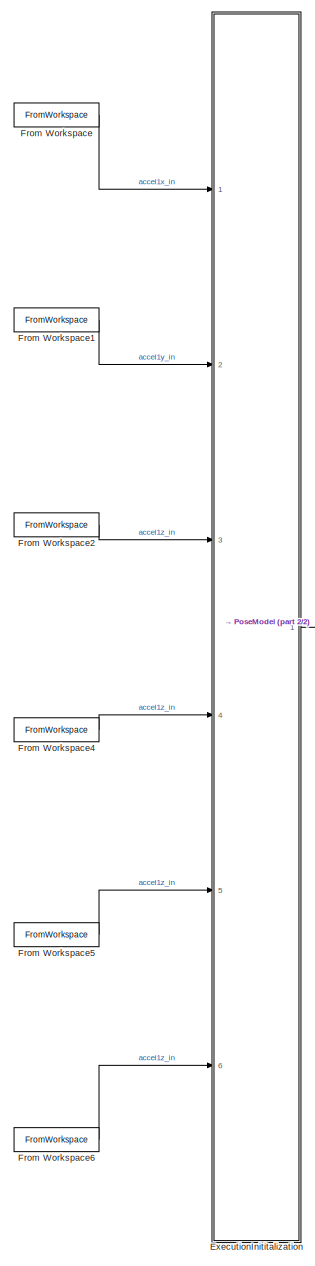
[diagram: root canvas - part 1/2, left side, full height]
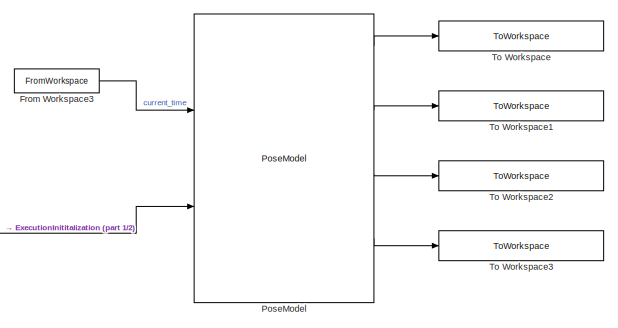
[diagram: root canvas - part 2/2, middle right region]
MODEL slx_7f1c03c744f3
KIND model
CONFIG AbsTol = auto
CONFIG EnableMultiTasking = off
CONFIG FixedStep = .05
CONFIG MaxStep = auto
CONFIG MinStep = auto
CONFIG RelTol = 1e-3
CONFIG SampleTimeConstraint = Unconstrained
CONFIG Solver = FixedStepDiscrete
CONFIG SolverName = FixedStepDiscrete
CONFIG StartTime = 0.0
CONFIG StopTime = datatime_end
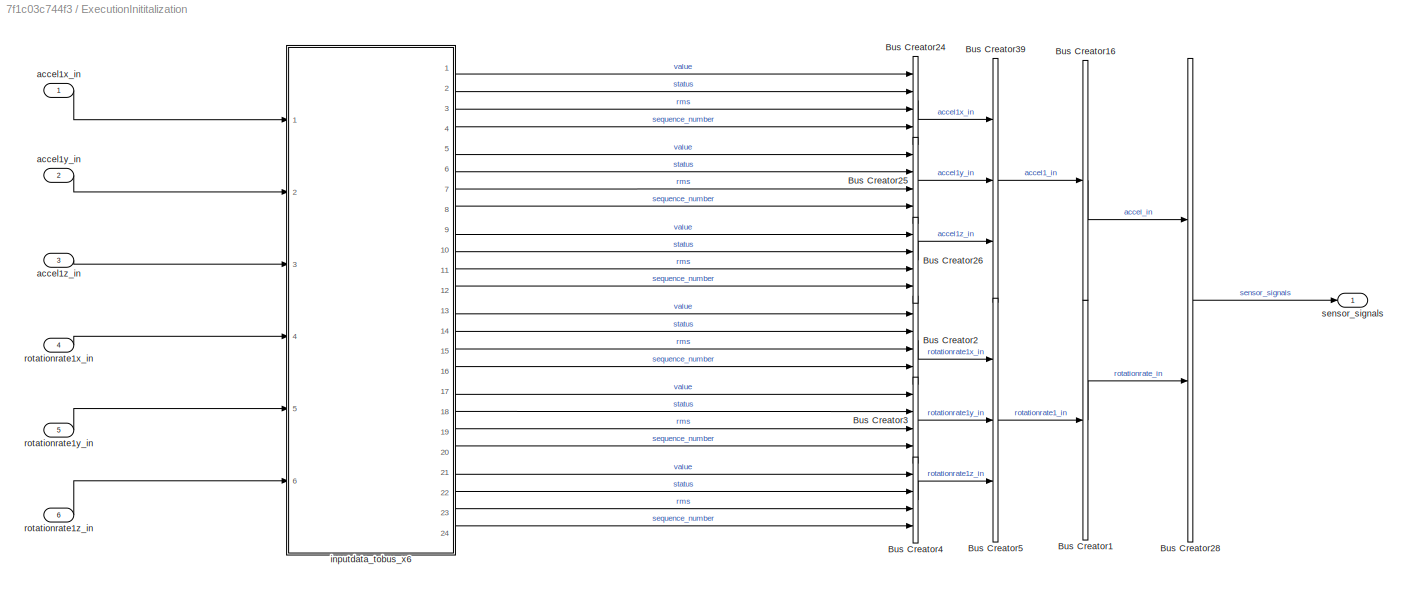
BLOCK [SubSystem] ExecutionInititalization
  AncestorBlock = posemodel/ExecutionInititalization
  Ports = [6, 1]
  RequestExecContextInheritance = off
BLOCK [BusCreator] ExecutionInititalization/Bus Creator1
  DisplayOption = bar
  InheritFromInputs = on
  Inputs = 1
  Ports = [1, 1]
BLOCK [BusCreator] ExecutionInititalization/Bus Creator16
  DisplayOption = bar
  InheritFromInputs = on
  Inputs = 1
  Ports = [1, 1]
BLOCK [BusCreator] ExecutionInititalization/Bus Creator2
  DisplayOption = bar
  InheritFromInputs = on
  Inputs = 4
  OutDataTypeStr = Bus: InputSignalObject
  Ports = [4, 1]
BLOCK [BusCreator] ExecutionInititalization/Bus Creator24
  DisplayOption = bar
  InheritFromInputs = on
  Inputs = 4
  OutDataTypeStr = Bus: InputSignalObject
  Ports = [4, 1]
BLOCK [BusCreator] ExecutionInititalization/Bus Creator25
  DisplayOption = bar
  InheritFromInputs = on
  Inputs = 4
  OutDataTypeStr = Bus: InputSignalObject
  Ports = [4, 1]
BLOCK [BusCreator] ExecutionInititalization/Bus Creator26
  DisplayOption = bar
  InheritFromInputs = on
  Inputs = 4
  OutDataTypeStr = Bus: InputSignalObject
  Ports = [4, 1]
BLOCK [BusCreator] ExecutionInititalization/Bus Creator28
  DisplayOption = bar
  InheritFromInputs = on
  Inputs = 2
  Ports = [2, 1]
BLOCK [BusCreator] ExecutionInititalization/Bus Creator3
  DisplayOption = bar
  InheritFromInputs = on
  Inputs = 4
  OutDataTypeStr = Bus: InputSignalObject
  Ports = [4, 1]
BLOCK [BusCreator] ExecutionInititalization/Bus Creator39
  DisplayOption = bar
  InheritFromInputs = on
  Inputs = 3
  Ports = [3, 1]
BLOCK [BusCreator] ExecutionInititalization/Bus Creator4
  DisplayOption = bar
  InheritFromInputs = on
  Inputs = 4
  OutDataTypeStr = Bus: InputSignalObject
  Ports = [4, 1]
BLOCK [BusCreator] ExecutionInititalization/Bus Creator5
  DisplayOption = bar
  InheritFromInputs = on
  Inputs = 3
  Ports = [3, 1]
BLOCK [Inport] ExecutionInititalization/accel1x_in
  IconDisplay = Port number
BLOCK [Inport] ExecutionInititalization/accel1y_in
  IconDisplay = Port number
  Port = 2
BLOCK [Inport] ExecutionInititalization/accel1z_in
  IconDisplay = Port number
  Port = 3
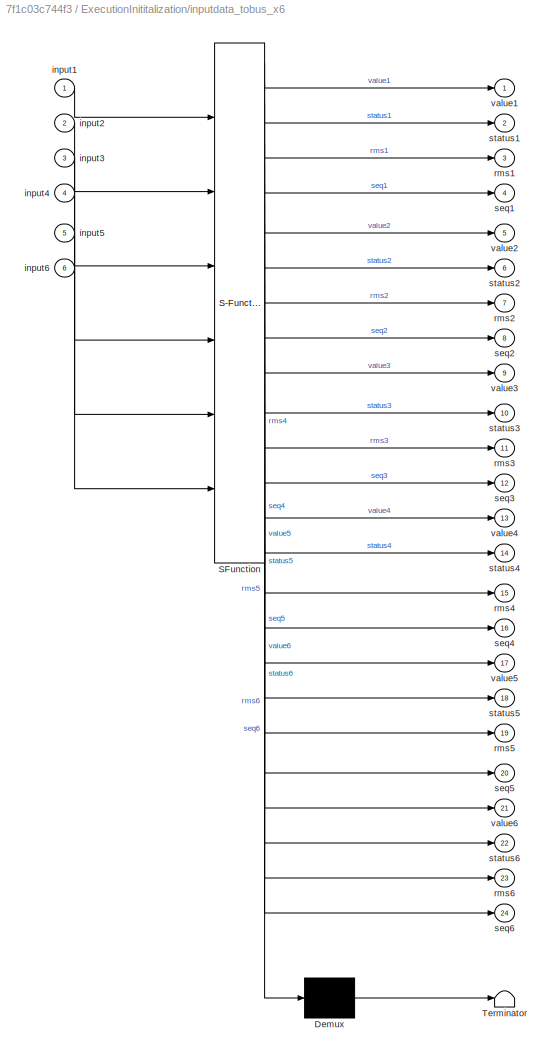
BLOCK [SubSystem] ExecutionInititalization/inputdata_tobus_x6
  AncestorBlock = posemodel/inputdata_tobus_x6
  ErrorFcn = Stateflow.Translate.translate
  PermitHierarchicalResolution = ExplicitOnly
  Ports = [6, 24]
  RequestExecContextInheritance = off
  SFBlockType = MATLAB Function
  TreatAsAtomicUnit = on
BLOCK [Demux] ExecutionInititalization/inputdata_tobus_x6/ Demux 
  Outputs = 1
  Ports = [1, 1]
BLOCK [S-Function] ExecutionInititalization/inputdata_tobus_x6/ SFunction 
  EnableBusSupport = on
  FunctionName = sf_sfun
  PortCounts = [6 25]
  Ports = [6, 25]
  SFcnIsStateOwnerBlock = off
  SFunctionDeploymentMode = off
  Tag = Stateflow S-Function 10
BLOCK [Terminator] ExecutionInititalization/inputdata_tobus_x6/ Terminator 
BLOCK [Inport] ExecutionInititalization/inputdata_tobus_x6/input1
  IconDisplay = Port number
BLOCK [Inport] ExecutionInititalization/inputdata_tobus_x6/input2
  IconDisplay = Port number
  Port = 2
BLOCK [Inport] ExecutionInititalization/inputdata_tobus_x6/input3
  IconDisplay = Port number
  Port = 3
BLOCK [Inport] ExecutionInititalization/inputdata_tobus_x6/input4
  IconDisplay = Port number
  Port = 4
BLOCK [Inport] ExecutionInititalization/inputdata_tobus_x6/input5
  IconDisplay = Port number
  Port = 5
BLOCK [Inport] ExecutionInititalization/inputdata_tobus_x6/input6
  IconDisplay = Port number
  Port = 6
BLOCK [Outport] ExecutionInititalization/inputdata_tobus_x6/rms1
  IconDisplay = Port number
  Port = 3
BLOCK [Outport] ExecutionInititalization/inputdata_tobus_x6/rms2
  IconDisplay = Port number
  Port = 7
BLOCK [Outport] ExecutionInititalization/inputdata_tobus_x6/rms3
  IconDisplay = Port number
  Port = 11
BLOCK [Outport] ExecutionInititalization/inputdata_tobus_x6/rms4
  IconDisplay = Port number
  Port = 15
BLOCK [Outport] ExecutionInititalization/inputdata_tobus_x6/rms5
  IconDisplay = Port number
  Port = 19
BLOCK [Outport] ExecutionInititalization/inputdata_tobus_x6/rms6
  IconDisplay = Port number
  Port = 23
BLOCK [Outport] ExecutionInititalization/inputdata_tobus_x6/seq1
  IconDisplay = Port number
  Port = 4
BLOCK [Outport] ExecutionInititalization/inputdata_tobus_x6/seq2
  IconDisplay = Port number
  Port = 8
BLOCK [Outport] ExecutionInititalization/inputdata_tobus_x6/seq3
  IconDisplay = Port number
  Port = 12
BLOCK [Outport] ExecutionInititalization/inputdata_tobus_x6/seq4
  IconDisplay = Port number
  Port = 16
BLOCK [Outport] ExecutionInititalization/inputdata_tobus_x6/seq5
  IconDisplay = Port number
  Port = 20
BLOCK [Outport] ExecutionInititalization/inputdata_tobus_x6/seq6
  IconDisplay = Port number
  Port = 24
BLOCK [Outport] ExecutionInititalization/inputdata_tobus_x6/status1
  IconDisplay = Port number
  Port = 2
BLOCK [Outport] ExecutionInititalization/inputdata_tobus_x6/status2
  IconDisplay = Port number
  Port = 6
BLOCK [Outport] ExecutionInititalization/inputdata_tobus_x6/status3
  IconDisplay = Port number
  Port = 10
BLOCK [Outport] ExecutionInititalization/inputdata_tobus_x6/status4
  IconDisplay = Port number
  Port = 14
BLOCK [Outport] ExecutionInititalization/inputdata_tobus_x6/status5
  IconDisplay = Port number
  Port = 18
BLOCK [Outport] ExecutionInititalization/inputdata_tobus_x6/status6
  IconDisplay = Port number
  Port = 22
BLOCK [Outport] ExecutionInititalization/inputdata_tobus_x6/value1
  IconDisplay = Port number
BLOCK [Outport] ExecutionInititalization/inputdata_tobus_x6/value2
  IconDisplay = Port number
  Port = 5
BLOCK [Outport] ExecutionInititalization/inputdata_tobus_x6/value3
  IconDisplay = Port number
  Port = 9
BLOCK [Outport] ExecutionInititalization/inputdata_tobus_x6/value4
  IconDisplay = Port number
  Port = 13
BLOCK [Outport] ExecutionInititalization/inputdata_tobus_x6/value5
  IconDisplay = Port number
  Port = 17
BLOCK [Outport] ExecutionInititalization/inputdata_tobus_x6/value6
  IconDisplay = Port number
  Port = 21
BLOCK [Inport] ExecutionInititalization/rotationrate1x_in
  IconDisplay = Port number
  Port = 4
BLOCK [Inport] ExecutionInititalization/rotationrate1y_in
  IconDisplay = Port number
  Port = 5
BLOCK [Inport] ExecutionInititalization/rotationrate1z_in
  IconDisplay = Port number
  Port = 6
BLOCK [Outport] ExecutionInititalization/sensor_signals
  IconDisplay = Port number
BLOCK [FromWorkspace] From Workspace
  SampleTime = 0
  VariableName = accel1x_in
  ZeroCross = on
BLOCK [FromWorkspace] From Workspace1
  SampleTime = 0
  VariableName = accel1y_in
  ZeroCross = on
BLOCK [FromWorkspace] From Workspace2
  SampleTime = 0
  VariableName = accel1z_in
  ZeroCross = on
BLOCK [FromWorkspace] From Workspace3
  SampleTime = 0
  VariableName = current_time
  ZeroCross = on
BLOCK [FromWorkspace] From Workspace4
  SampleTime = 0
  VariableName = rotationrate1x_in
  ZeroCross = on
BLOCK [FromWorkspace] From Workspace5
  SampleTime = 0
  VariableName = rotationrate1y_in
  ZeroCross = on
BLOCK [FromWorkspace] From Workspace6
  SampleTime = 0
  VariableName = rotationrate1z_in
  ZeroCross = on
BLOCK [Reference] PoseModel  REF=posemodel/PoseModel  (lib defined in slx_125079be235e)
  Ports = [2, 8]
  SourceBlock = posemodel/PoseModel
  SourceProductName = Pose Model Library
  SourceType = SubSystem
BLOCK [ToWorkspace] To Workspace
  FixptAsFi = on
  MaxDataPoints = inf
  Ports = [1]
  SampleTime = -1
  SaveFormat = Timeseries
  VariableName = timed_signals
BLOCK [ToWorkspace] To Workspace1
  FixptAsFi = on
  MaxDataPoints = inf
  Ports = [1]
  SampleTime = -1
  SaveFormat = Timeseries
  VariableName = pose_linearacceleration_signals
BLOCK [ToWorkspace] To Workspace2
  FixptAsFi = on
  MaxDataPoints = inf
  Ports = [1]
  SampleTime = -1
  SaveFormat = Timeseries
  VariableName = pose_orientation_signals
BLOCK [ToWorkspace] To Workspace3
  FixptAsFi = on
  MaxDataPoints = inf
  Ports = [1]
  SampleTime = -1
  SaveFormat = Timeseries
  VariableName = pose_rotationrate_signals
LINE ExecutionInititalization:1 -> PoseModel:2
LINE From Workspace1:1 -> ExecutionInititalization:2
LINE From Workspace2:1 -> ExecutionInititalization:3
LINE From Workspace3:1 -> PoseModel:1
LINE From Workspace4:1 -> ExecutionInititalization:4
LINE From Workspace5:1 -> ExecutionInititalization:5
LINE From Workspace6:1 -> ExecutionInititalization:6
LINE From Workspace:1 -> ExecutionInititalization:1
LINE PoseModel:1 -> To Workspace:1
LINE PoseModel:3 -> To Workspace1:1
LINE PoseModel:5 -> To Workspace2:1
LINE PoseModel:7 -> To Workspace3:1
CHART ExecutionInititalization/inputdata_tobus_x6 states=1 transitions=1
  STATE_LABEL 'eML_blk_kernel()'
  STATE_LABEL 'SCRIPT:\nfunction [value1,status1,rms1,seq1, ... \n            value2,status2,rms2,seq2, ... \n            value3,status3,rms3,seq3, ...\n            value4,status4,rms4,seq4, ...\n            value5,status5,rms5,seq5, ...\n            value6,status6,rms6,seq6] ...\n              = inputdata_tobus_x6( ...\n                input1,input2,input3,input4,input5,input6)\nVALUE_INDEX = 1;\nSTATUS_INDEX = 2;\nRMS_IN...<+885ch>'
